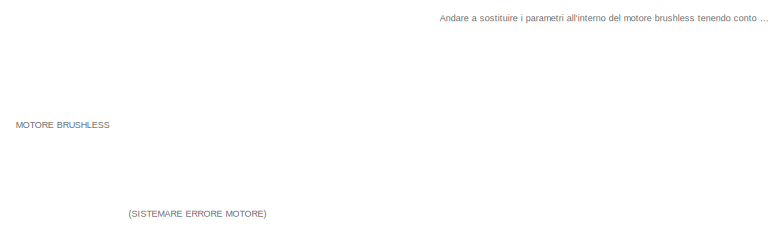
[diagram: root canvas - part 1/3, top center region]
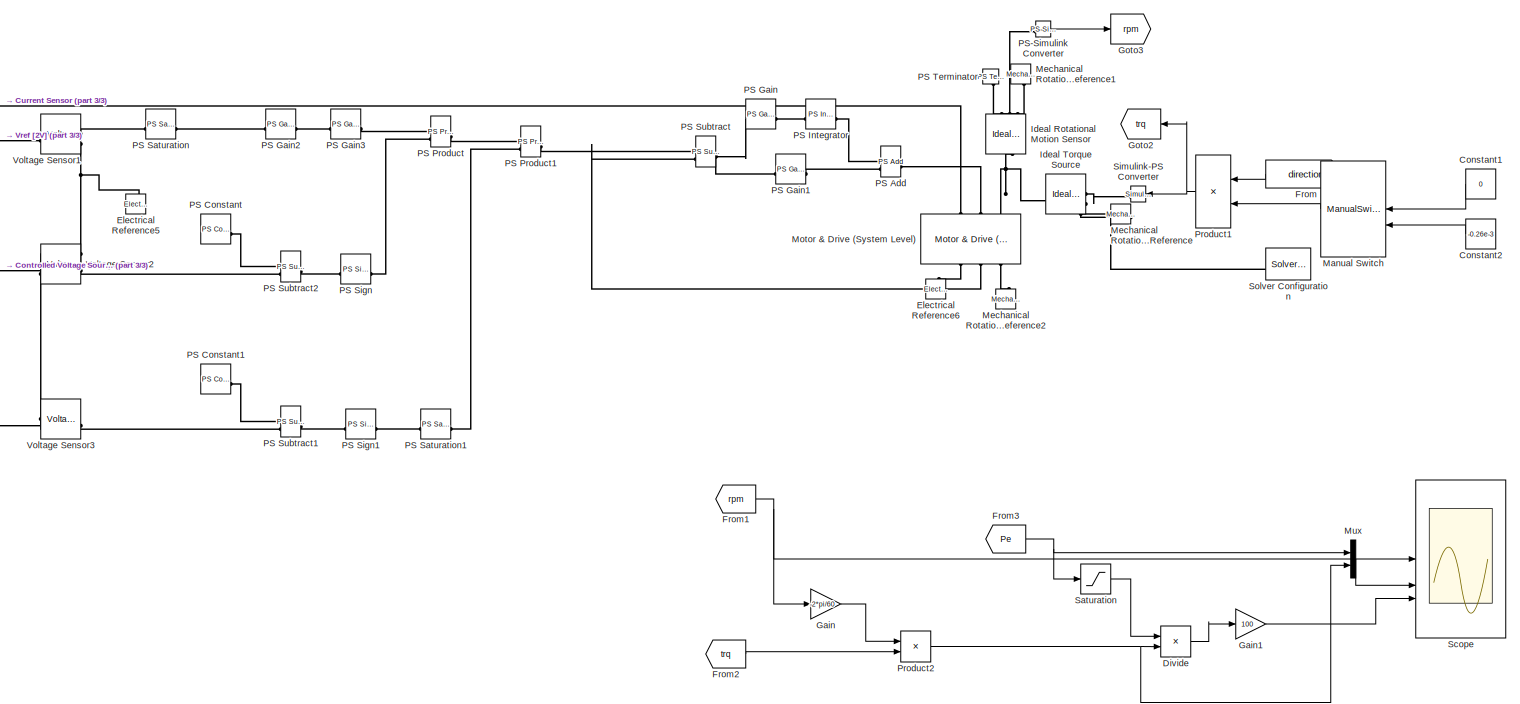
[diagram: root canvas - part 2/3, middle right region]
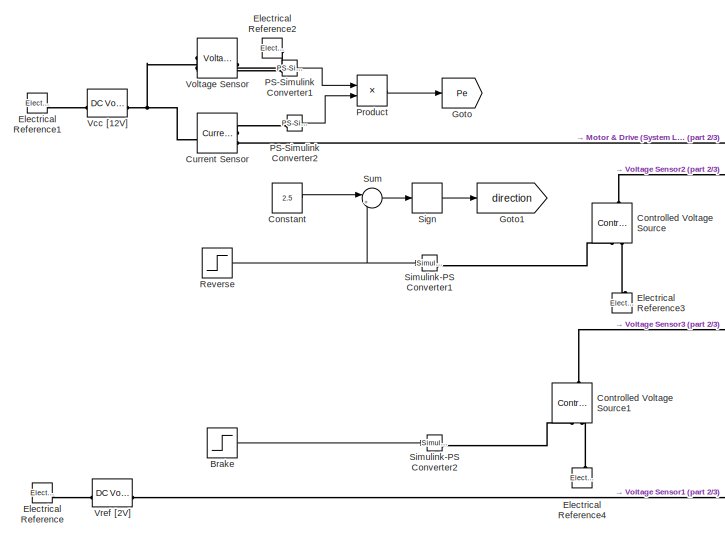
[diagram: root canvas - part 3/3, middle left region]
MODEL slx_52eaaeced336
KIND model
CONFIG AbsTol = 1e-3
CONFIG EnableMultiTasking = off
CONFIG FixedStep = auto
CONFIG MaxStep = auto
CONFIG MinStep = auto
CONFIG RelTol = 1e-3
CONFIG SampleTimeConstraint = Unconstrained
CONFIG SolverName = VariableStepAuto
CONFIG StartTime = 0.0
CONFIG StopTime = 2
BLOCK [Step] Brake
  After = 5
  SampleTime = 0
  Time = 2
BLOCK [Constant] Constant
  Value = 2.5
BLOCK [Constant] Constant1
  Value = 0
BLOCK [Constant] Constant2
  Value = -0.26e-3
BLOCK [Reference] Controlled Voltage Source  REF=fl_lib/Electrical/Electrical Sources/Controlled Voltage
Source
  NameLocation = right
  SourceBlock = fl_lib/Electrical/Electrical Sources/Controlled Voltage\nSource
  SourceType = Controlled Voltage\nSource
BLOCK [Reference] Controlled Voltage Source1  REF=fl_lib/Electrical/Electrical Sources/Controlled Voltage
Source
  NameLocation = right
  SourceBlock = fl_lib/Electrical/Electrical Sources/Controlled Voltage\nSource
  SourceType = Controlled Voltage\nSource
BLOCK [Reference] Current Sensor  REF=fl_lib/Electrical/Electrical Sensors/Current Sensor
  SourceBlock = fl_lib/Electrical/Electrical Sensors/Current Sensor
  SourceType = Current Sensor
BLOCK [Product] Divide
  Inputs = /*
BLOCK [Reference] Electrical Reference  REF=fl_lib/Electrical/Electrical Elements/Electrical Reference
  NameLocation = left
  SourceBlock = fl_lib/Electrical/Electrical Elements/Electrical Reference
  SourceType = Electrical Reference
BLOCK [Reference] Electrical Reference1  REF=fl_lib/Electrical/Electrical Elements/Electrical Reference
  NameLocation = left
  SourceBlock = fl_lib/Electrical/Electrical Elements/Electrical Reference
  SourceType = Electrical Reference
BLOCK [Reference] Electrical Reference2  REF=fl_lib/Electrical/Electrical Elements/Electrical Reference
  NameLocation = right
  SourceBlock = fl_lib/Electrical/Electrical Elements/Electrical Reference
  SourceType = Electrical Reference
BLOCK [Reference] Electrical Reference3  REF=fl_lib/Electrical/Electrical Elements/Electrical Reference
  LibrarySourceBlock = ee_lib/Connectors &\nReferences/Electrical Reference
  NameLocation = right
  SourceBlock = fl_lib/Electrical/Electrical Elements/Electrical Reference
  SourceType = Electrical Reference
BLOCK [Reference] Electrical Reference4  REF=fl_lib/Electrical/Electrical Elements/Electrical Reference
  LibrarySourceBlock = ee_lib/Connectors &\nReferences/Electrical Reference
  NameLocation = right
  SourceBlock = fl_lib/Electrical/Electrical Elements/Electrical Reference
  SourceType = Electrical Reference
BLOCK [Reference] Electrical Reference5  REF=fl_lib/Electrical/Electrical Elements/Electrical Reference
  LibrarySourceBlock = ee_lib/Connectors &\nReferences/Electrical Reference
  NameLocation = right
  SourceBlock = fl_lib/Electrical/Electrical Elements/Electrical Reference
  SourceType = Electrical Reference
BLOCK [Reference] Electrical Reference6  REF=fl_lib/Electrical/Electrical Elements/Electrical Reference
  LibrarySourceBlock = ee_lib/Connectors &\nReferences/Electrical Reference
  NameLocation = right
  SourceBlock = fl_lib/Electrical/Electrical Elements/Electrical Reference
  SourceType = Electrical Reference
BLOCK [From] From
  GotoTag = direction
BLOCK [From] From1
  GotoTag = rpm
BLOCK [From] From2
  GotoTag = trq
BLOCK [From] From3
  GotoTag = Pe
BLOCK [Gain] Gain
  Gain = -2*pi/60
BLOCK [Gain] Gain1
  Gain = 100
BLOCK [Goto] Goto
  GotoTag = Pe
BLOCK [Goto] Goto1
  GotoTag = direction
BLOCK [Goto] Goto2
  GotoTag = trq
BLOCK [Goto] Goto3
  GotoTag = rpm
BLOCK [Reference] Ideal Rotational Motion Sensor  REF=fl_lib/Mechanical/Mechanical Sensors/Ideal Rotational
Motion Sensor
  NameLocation = right
  SourceBlock = fl_lib/Mechanical/Mechanical Sensors/Ideal Rotational\nMotion Sensor
  SourceType = Ideal Rotational\nMotion Sensor
BLOCK [Reference] Ideal Torque Source  REF=fl_lib/Mechanical/Mechanical Sources/Ideal Torque Source
  NameLocation = top
  SourceBlock = fl_lib/Mechanical/Mechanical Sources/Ideal Torque Source
  SourceType = Ideal Torque Source
BLOCK [ManualSwitch] Manual Switch
  CurrentSetting = 0
BLOCK [Reference] Mechanical Rotational Reference  REF=fl_lib/Mechanical/Rotational Elements/Mechanical
Rotational Reference
  NameLocation = top
  SourceBlock = fl_lib/Mechanical/Rotational Elements/Mechanical\nRotational Reference
  SourceType = Mechanical\nRotational Reference
BLOCK [Reference] Mechanical Rotational Reference1  REF=fl_lib/Mechanical/Rotational Elements/Mechanical
Rotational Reference
  NameLocation = left
  SourceBlock = fl_lib/Mechanical/Rotational Elements/Mechanical\nRotational Reference
  SourceType = Mechanical\nRotational Reference
BLOCK [Reference] Mechanical Rotational Reference2  REF=fl_lib/Mechanical/Rotational Elements/Mechanical
Rotational Reference
  NameLocation = right
  SourceBlock = fl_lib/Mechanical/Rotational Elements/Mechanical\nRotational Reference
  SourceType = Mechanical\nRotational Reference
BLOCK [Reference] Motor & Drive (System Level)  REF=ee_lib/Electromechanical/Motor & Drive
(System Level)
  NameLocation = right
  SourceBlock = ee_lib/Electromechanical/Motor & Drive\n(System Level)
  SourceType = Motor & Drive\n(System Level)
BLOCK [Mux] Mux
  DisplayOption = bar
  Inputs = 2
BLOCK [Reference] PS Add  REF=fl_lib/Physical Signals/Functions/PS Add
  SourceBlock = fl_lib/Physical Signals/Functions/PS Add
  SourceType = PS Add
BLOCK [Reference] PS Constant  REF=fl_lib/Physical Signals/Sources/PS Constant
  SourceBlock = fl_lib/Physical Signals/Sources/PS Constant
  SourceType = PS Constant
BLOCK [Reference] PS Constant1  REF=fl_lib/Physical Signals/Sources/PS Constant
  SourceBlock = fl_lib/Physical Signals/Sources/PS Constant
  SourceType = PS Constant
BLOCK [Reference] PS Gain  REF=fl_lib/Physical Signals/Functions/PS Gain
  SourceBlock = fl_lib/Physical Signals/Functions/PS Gain
  SourceType = PS Gain
BLOCK [Reference] PS Gain1  REF=fl_lib/Physical Signals/Functions/PS Gain
  SourceBlock = fl_lib/Physical Signals/Functions/PS Gain
  SourceType = PS Gain
BLOCK [Reference] PS Gain2  REF=fl_lib/Physical Signals/Functions/PS Gain
  SourceBlock = fl_lib/Physical Signals/Functions/PS Gain
  SourceType = PS Gain
BLOCK [Reference] PS Gain3  REF=fl_lib/Physical Signals/Functions/PS Gain
  SourceBlock = fl_lib/Physical Signals/Functions/PS Gain
  SourceType = PS Gain
BLOCK [Reference] PS Integrator  REF=fl_lib/Physical Signals/Linear Operators/PS Integrator
  SourceBlock = fl_lib/Physical Signals/Linear Operators/PS Integrator
  SourceType = PS Integrator
BLOCK [Reference] PS Product  REF=fl_lib/Physical Signals/Functions/PS Product
  SourceBlock = fl_lib/Physical Signals/Functions/PS Product
  SourceType = PS Product
BLOCK [Reference] PS Product1  REF=fl_lib/Physical Signals/Functions/PS Product
  SourceBlock = fl_lib/Physical Signals/Functions/PS Product
  SourceType = PS Product
BLOCK [Reference] PS Saturation  REF=fl_lib/Physical Signals/Nonlinear Operators/PS Saturation
  SourceBlock = fl_lib/Physical Signals/Nonlinear Operators/PS Saturation
  SourceType = PS Saturation
BLOCK [Reference] PS Saturation1  REF=fl_lib/Physical Signals/Nonlinear Operators/PS Saturation
  SourceBlock = fl_lib/Physical Signals/Nonlinear Operators/PS Saturation
  SourceType = PS Saturation
BLOCK [Reference] PS Sign  REF=fl_lib/Physical Signals/Nonlinear Operators/PS Sign
  SourceBlock = fl_lib/Physical Signals/Nonlinear Operators/PS Sign
  SourceType = PS Sign
BLOCK [Reference] PS Sign1  REF=fl_lib/Physical Signals/Nonlinear Operators/PS Sign
  SourceBlock = fl_lib/Physical Signals/Nonlinear Operators/PS Sign
  SourceType = PS Sign
BLOCK [Reference] PS Subtract  REF=fl_lib/Physical Signals/Functions/PS Subtract
  SourceBlock = fl_lib/Physical Signals/Functions/PS Subtract
  SourceType = PS Subtract
BLOCK [Reference] PS Subtract1  REF=fl_lib/Physical Signals/Functions/PS Subtract
  SourceBlock = fl_lib/Physical Signals/Functions/PS Subtract
  SourceType = PS Subtract
BLOCK [Reference] PS Subtract2  REF=fl_lib/Physical Signals/Functions/PS Subtract
  SourceBlock = fl_lib/Physical Signals/Functions/PS Subtract
  SourceType = PS Subtract
BLOCK [Reference] PS Terminator  REF=fl_lib/Physical Signals/Sinks/PS Terminator
  NameLocation = right
  SourceBlock = fl_lib/Physical Signals/Sinks/PS Terminator
  SourceType = PS Terminator
BLOCK [Reference] PS-Simulink Converter  REF=nesl_utility/PS-Simulink
Converter
  SourceBlock = nesl_utility/PS-Simulink\nConverter
  SourceType = PS-Simulink\nConverter
BLOCK [Reference] PS-Simulink Converter1  REF=nesl_utility/PS-Simulink
Converter
  SourceBlock = nesl_utility/PS-Simulink\nConverter
  SourceType = PS-Simulink\nConverter
BLOCK [Reference] PS-Simulink Converter2  REF=nesl_utility/PS-Simulink
Converter
  SourceBlock = nesl_utility/PS-Simulink\nConverter
  SourceType = PS-Simulink\nConverter
BLOCK [Product] Product
BLOCK [Product] Product1
BLOCK [Product] Product2
BLOCK [Step] Reverse
  After = 5
  SampleTime = 0
BLOCK [Saturate] Saturation
  LowerLimit = 1e-3
  UpperLimit = inf
BLOCK [Scope] Scope
  Floating = off
  NumInputPorts = 3
  ScopeSpecificationString = Simulink.scopes.TimeScopeBlockCfg('CurrentConfiguration', extmgr.ConfigurationSet(extmgr.Configuration('Core','General UI',true),extmgr.Configuration('Core','Source UI',true),extmgr.Configuration('Sources','WiredSimulink',true),extmgr.Configuration('Visuals','Time Domain',true),extmgr.Configuration('Tools','Plot Navigation',true),extmgr.Configuration('Tools','Measurements',true,'Version','2023b'))...<+19ch>
BLOCK [Signum] Sign
BLOCK [Reference] Simulink-PS Converter  REF=nesl_utility/Simulink-PS
Converter
  SourceBlock = nesl_utility/Simulink-PS\nConverter
  SourceType = Simulink-PS\nConverter
BLOCK [Reference] Simulink-PS Converter1  REF=nesl_utility/Simulink-PS
Converter
  SourceBlock = nesl_utility/Simulink-PS\nConverter
  SourceType = Simulink-PS\nConverter
BLOCK [Reference] Simulink-PS Converter2  REF=nesl_utility/Simulink-PS
Converter
  SourceBlock = nesl_utility/Simulink-PS\nConverter
  SourceType = Simulink-PS\nConverter
BLOCK [Reference] Solver Configuration  REF=nesl_utility/Solver
Configuration
  SourceBlock = nesl_utility/Solver\nConfiguration
  SourceType = Solver\nConfiguration
BLOCK [Sum] Sum
  Inputs = |+-
BLOCK [Reference] Vcc [12V]  REF=fl_lib/Electrical/Electrical Sources/DC Voltage Source
  SourceBlock = fl_lib/Electrical/Electrical Sources/DC Voltage Source
  SourceType = DC Voltage Source
BLOCK [Reference] Voltage Sensor  REF=fl_lib/Electrical/Electrical Sensors/Voltage Sensor
  NameLocation = top
  SourceBlock = fl_lib/Electrical/Electrical Sensors/Voltage Sensor
  SourceType = Voltage Sensor
BLOCK [Reference] Voltage Sensor1  REF=fl_lib/Electrical/Electrical Sensors/Voltage Sensor
  NameLocation = top
  SourceBlock = fl_lib/Electrical/Electrical Sensors/Voltage Sensor
  SourceType = Voltage Sensor
BLOCK [Reference] Voltage Sensor2  REF=fl_lib/Electrical/Electrical Sensors/Voltage Sensor
  NameLocation = top
  SourceBlock = fl_lib/Electrical/Electrical Sensors/Voltage Sensor
  SourceType = Voltage Sensor
BLOCK [Reference] Voltage Sensor3  REF=fl_lib/Electrical/Electrical Sensors/Voltage Sensor
  NameLocation = top
  SourceBlock = fl_lib/Electrical/Electrical Sensors/Voltage Sensor
  SourceType = Voltage Sensor
BLOCK [Reference] Vref [2V]  REF=fl_lib/Electrical/Electrical Sources/DC Voltage Source
  SourceBlock = fl_lib/Electrical/Electrical Sources/DC Voltage Source
  SourceType = DC Voltage Source
ANNOTATION (root): (SISTEMARE ERRORE MOTORE)
ANNOTATION (root): Andare a sostituire i parametri all'interno del motore brushless tenendo conto della window che compare sulla simulazione della Mathworks
ANNOTATION (root): MOTORE BRUSHLESS
LINE Brake:1 -> Simulink-PS Converter2:1
LINE Constant1:1 -> Manual Switch:1
LINE Constant2:1 -> Manual Switch:2
LINE Constant:1 -> Sum:1
LINE Divide:1 -> Gain1:1
NET From1:1 -> Gain:1, Scope:1
LINE From2:1 -> Product2:2
NET From3:1 -> Mux:1, Saturation:1
LINE From:1 -> Product1:1
LINE Gain1:1 -> Scope:3
LINE Gain:1 -> Product2:1
LINE Manual Switch:1 -> Product1:2
LINE Mux:1 -> Scope:2
LINE PS-Simulink Converter1:1 -> Product:1
LINE PS-Simulink Converter2:1 -> Product:2
LINE PS-Simulink Converter:1 -> Goto3:1
NET Product1:1 -> Goto2:1, Simulink-PS Converter:1
NET Product2:1 -> Divide:2, Mux:2
LINE Product:1 -> Goto:1
NET Reverse:1 -> Simulink-PS Converter1:1, Sum:2
LINE Saturation:1 -> Divide:1
LINE Sign:1 -> Goto1:1
LINE Sum:1 -> Sign:1
PLINE Controlled Voltage Source1:LConn1 -- Voltage Sensor3:LConn1
PLINE Controlled Voltage Source1:RConn1 -- Simulink-PS Converter2:RConn1
PLINE Controlled Voltage Source1:RConn2 -- Electrical Reference4:LConn1
PLINE Controlled Voltage Source:LConn1 -- Voltage Sensor2:LConn1
PLINE Controlled Voltage Source:RConn1 -- Simulink-PS Converter1:RConn1
PLINE Controlled Voltage Source:RConn2 -- Electrical Reference3:LConn1
PNET net1: Current Sensor:LConn1 -- Vcc [12V]:LConn1 -- Voltage Sensor:LConn1
PLINE Current Sensor:RConn1 -- PS-Simulink Converter2:LConn1
PLINE Current Sensor:RConn2 -- Motor & Drive (System Level):LConn1
PLINE Electrical Reference1:LConn1 -- Vcc [12V]:RConn1
PLINE Electrical Reference2:LConn1 -- Voltage Sensor:RConn2
PNET net2: Electrical Reference5:LConn1 -- Voltage Sensor1:RConn2 -- Voltage Sensor2:RConn2 -- Voltage Sensor3:RConn2
PLINE Electrical Reference6:LConn1 -- Motor & Drive (System Level):RConn1
PLINE Electrical Reference:LConn1 -- Vref [2V]:RConn1
PNET net3: Ideal Rotational Motion Sensor:LConn1 -- Ideal Torque Source:LConn1 -- Motor & Drive (System Level):LConn3
PLINE Ideal Rotational Motion Sensor:RConn1 -- Mechanical Rotational Reference1:LConn1
PLINE Ideal Rotational Motion Sensor:RConn2 -- PS-Simulink Converter:LConn1
PLINE Ideal Rotational Motion Sensor:RConn3 -- PS Terminator:LConn1
PLINE Ideal Torque Source:RConn1 -- Simulink-PS Converter:RConn1
PNET net4: Ideal Torque Source:RConn2 -- Mechanical Rotational Reference:LConn1 -- Solver Configuration:RConn1
PLINE Mechanical Rotational Reference2:LConn1 -- Motor & Drive (System Level):RConn3
PLINE Motor & Drive (System Level):LConn2 -- PS Add:RConn1
PLINE Motor & Drive (System Level):RConn2 -- PS Subtract:LConn2
PLINE PS Add:LConn1 -- PS Integrator:RConn1
PLINE PS Add:LConn2 -- PS Gain1:RConn1
PLINE PS Constant1:RConn1 -- PS Subtract1:LConn1
PLINE PS Constant:RConn1 -- PS Subtract2:LConn1
PNET net5: PS Gain1:LConn1 -- PS Gain:LConn1 -- PS Subtract:RConn1
PLINE PS Gain2:LConn1 -- PS Saturation:RConn1
PLINE PS Gain2:RConn1 -- PS Gain3:LConn1
PLINE PS Gain3:RConn1 -- PS Product:LConn1
PLINE PS Gain:RConn1 -- PS Integrator:LConn1
PLINE PS Product1:LConn1 -- PS Product:RConn1
PLINE PS Product1:LConn2 -- PS Saturation1:RConn1
PLINE PS Product1:RConn1 -- PS Subtract:LConn1
PLINE PS Product:LConn2 -- PS Sign:RConn1
PLINE PS Saturation1:LConn1 -- PS Sign1:RConn1
PLINE PS Saturation:LConn1 -- Voltage Sensor1:RConn1
PLINE PS Sign1:LConn1 -- PS Subtract1:RConn1
PLINE PS Sign:LConn1 -- PS Subtract2:RConn1
PLINE PS Subtract1:LConn2 -- Voltage Sensor3:RConn1
PLINE PS Subtract2:LConn2 -- Voltage Sensor2:RConn1
PLINE PS-Simulink Converter1:LConn1 -- Voltage Sensor:RConn1
PLINE Voltage Sensor1:LConn1 -- Vref [2V]:LConn1
note: NET lines group one-source signal fan-out (src -> all destinations, sorted); 1:1 wires keep LINE; PNET lines group multi-terminal physical nets as a canonical sorted terminal list (undirected conserving connections); 2-terminal nets keep the pairwise PLINE form
